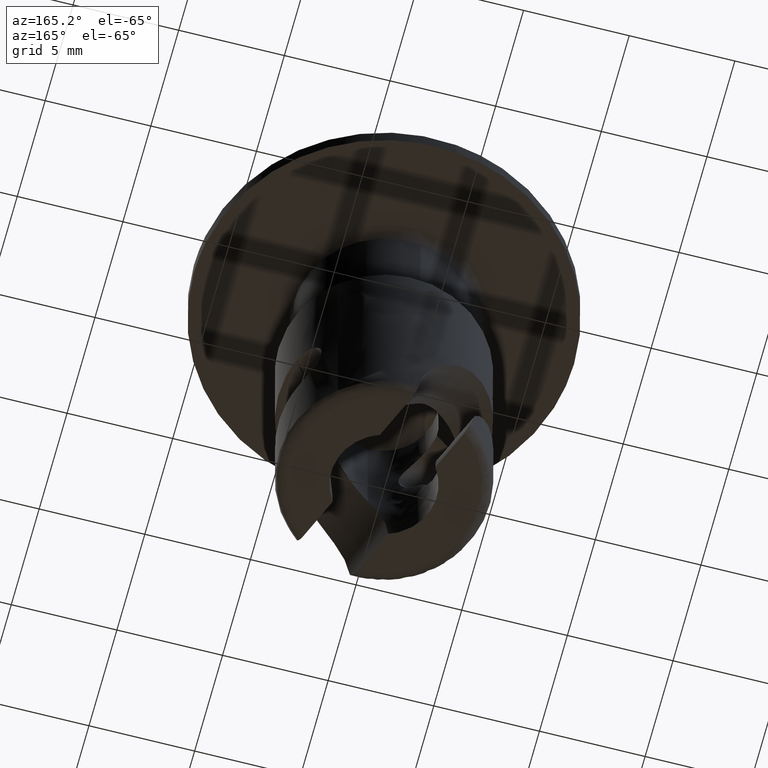
[diagram: clean part render]
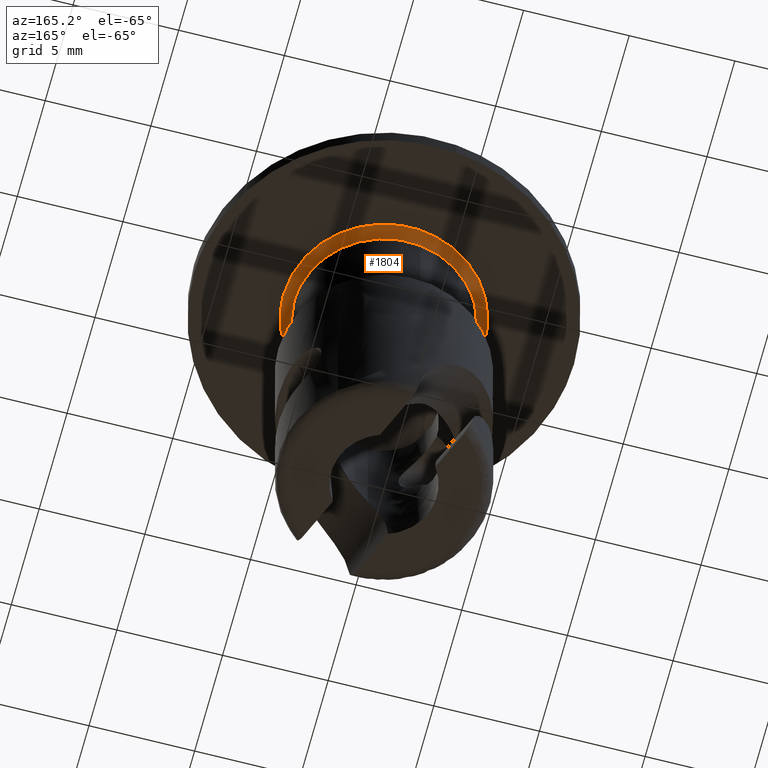
[diagram: same view with one face highlighted and labeled with its STEP entity id]
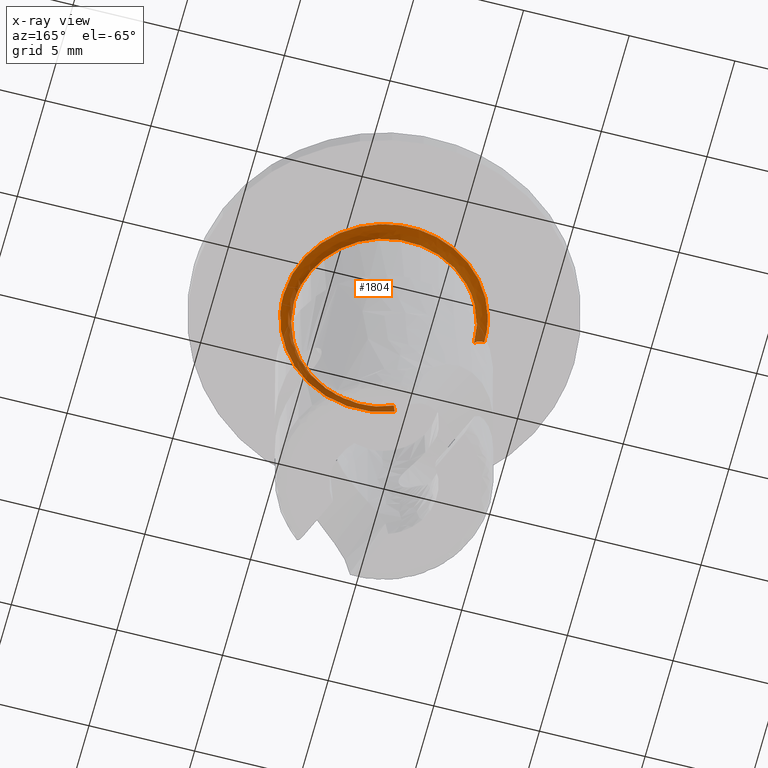
[diagram: x-ray of the same camera — body ghosted, the highlighted face saturated]
A machine part, auxiliary view. The second image highlights one B-rep face of the part: STEP entity #1804.
The next image is the same camera in x-ray: the body ghosted, the highlighted face saturated — about 22% of this face is hidden behind the body in this view.
In plain terms, the highlighted face is a freeform B-spline surface patch.
Its self-contained STEP definition (entity closure, byte-faithful):
#151=CARTESIAN_POINT('',(-0.628185888141464,4.203318033402024,-0.499999999998774));
#152=VERTEX_POINT('',#151);
#158=CARTESIAN_POINT('',(4.250000000000000,0.0,-0.499999999999945));
#159=VERTEX_POINT('',#158);
#160=CARTESIAN_POINT('',(-0.628185888141464,4.203318033402023,-0.499999999998774));
#161=CARTESIAN_POINT('',(-0.315827467280018,4.250000000000000,-0.499999999999945));
#162=CARTESIAN_POINT('',(0.0,4.250000000000000,-0.499999999999945));
#163=CARTESIAN_POINT('',(4.249999999999999,4.249999999999999,-0.499999999999945));
#164=CARTESIAN_POINT('',(4.250000000000000,0.0,-0.499999999999945));
#172=(BOUNDED_CURVE()B_SPLINE_CURVE(2,(#160,#161,#162,#163,#164),.UNSPECIFIED.,.F.,.U.)B_SPLINE_CURVE_WITH_KNOTS((3,2,3),(0.724511193935959,0.750000000000000,1.0),.UNSPECIFIED.)CURVE()GEOMETRIC_REPRESENTATION_ITEM()RATIONAL_B_SPLINE_CURVE((0.946365184936235,0.970138006192765,1.0,0.707106781186548,1.0))REPRESENTATION_ITEM(''));
#173=EDGE_CURVE('',#152,#159,#172,.T.);
#175=CARTESIAN_POINT('',(-1.501533358306497,-3.975914683930328,-0.499999999895076));
#176=VERTEX_POINT('',#175);
#177=CARTESIAN_POINT('',(4.250000000000000,0.0,-0.499999999999945));
#178=CARTESIAN_POINT('',(4.249999999999999,-4.249999999999999,-0.499999999999945));
#179=CARTESIAN_POINT('',(0.0,-4.250000000000000,-0.499999999999945));
#180=CARTESIAN_POINT('',(-0.775782027653905,-4.250000000000000,-0.499999999999945));
#181=CARTESIAN_POINT('',(-1.501533358306497,-3.975914683930328,-0.499999999895077));
#189=(BOUNDED_CURVE()B_SPLINE_CURVE(2,(#177,#178,#179,#180,#181),.UNSPECIFIED.,.F.,.U.)B_SPLINE_CURVE_WITH_KNOTS((3,2,3),(0.0,0.250000000000000,0.310000000000085),.UNSPECIFIED.)CURVE()GEOMETRIC_REPRESENTATION_ITEM()RATIONAL_B_SPLINE_CURVE((1.0,0.707106781186548,1.0,0.929705627484671,0.893152553776749))REPRESENTATION_ITEM(''));
#190=EDGE_CURVE('',#159,#176,#189,.T.);
#192=CARTESIAN_POINT('',(-4.249999999999999,2.218537E-016,-0.499999999893351));
#193=VERTEX_POINT('',#192);
#207=CARTESIAN_POINT('',(-3.148860157409597,2.854326489573020,-0.499999999964939));
#208=VERTEX_POINT('',#207);
#209=CARTESIAN_POINT('',(-4.249999999999999,2.218537E-016,-0.499999999893351));
#210=CARTESIAN_POINT('',(-4.250000000000001,1.639561444952711,-0.499999999934473));
#211=CARTESIAN_POINT('',(-3.148860157409597,2.854326489573019,-0.499999999964939));
#219=(BOUNDED_CURVE()B_SPLINE_CURVE(2,(#209,#210,#211),.UNSPECIFIED.,.F.,.U.)B_SPLINE_CURVE_WITH_KNOTS((3,3),(0.500000000000000,0.617601417316697),.UNSPECIFIED.)CURVE()GEOMETRIC_REPRESENTATION_ITEM()RATIONAL_B_SPLINE_CURVE((1.0,0.862221369380354,0.854066436655300))REPRESENTATION_ITEM(''));
#220=EDGE_CURVE('',#193,#208,#219,.T.);
#262=CARTESIAN_POINT('',(-3.148860157409597,2.854326489573020,-0.499999999964939));
#263=CARTESIAN_POINT('',(-2.129422905639117,3.978958158264121,-0.499999999993147));
#264=CARTESIAN_POINT('',(-0.628185888141464,4.203318033402023,-0.499999999998774));
#272=(BOUNDED_CURVE()B_SPLINE_CURVE(2,(#262,#263,#264),.UNSPECIFIED.,.F.,.U.)B_SPLINE_CURVE_WITH_KNOTS((3,3),(0.617601417316697,0.724511193935959),.UNSPECIFIED.)CURVE()GEOMETRIC_REPRESENTATION_ITEM()RATIONAL_B_SPLINE_CURVE((0.854066436655300,0.846652903248362,0.946365184936235))REPRESENTATION_ITEM(''));
#273=EDGE_CURVE('',#208,#152,#272,.T.);
#1701=CARTESIAN_POINT('',(-1.690435198935368,-4.476108434424392,-0.001203826731089));
#1702=CARTESIAN_POINT('',(-0.873380027817440,-4.784675315893946,-0.001203826731089));
#1703=CARTESIAN_POINT('',(-5.859344E-016,-4.784675315893946,-0.001203826731089));
#1704=CARTESIAN_POINT('',(4.784675315893944,-4.784675315893945,-0.001203826731089));
#1705=CARTESIAN_POINT('',(4.784675315893946,-8.789016E-016,-0.001203826731089));
#1706=CARTESIAN_POINT('',(4.784675315893945,4.784675315893944,-0.001203826731089));
#1707=CARTESIAN_POINT('',(1.171869E-015,4.784675315893946,-0.001203826731089));
#1708=CARTESIAN_POINT('',(-4.784675315893944,4.784675315893945,-0.001203826731089));
#1709=CARTESIAN_POINT('',(-4.784675315893946,1.464836E-015,-0.001203826731089));
#1710=CARTESIAN_POINT('',(-1.487800636366968,-3.939551768312883,0.038667875892163));
#1711=CARTESIAN_POINT('',(-0.768686881339999,-4.211130355236122,0.038667875892163));
#1712=CARTESIAN_POINT('',(-5.156977E-016,-4.211130355236123,0.038667875892163));
#1713=CARTESIAN_POINT('',(4.211130355236122,-4.211130355236122,0.038667875892163));
#1714=CARTESIAN_POINT('',(4.211130355236123,-7.735465E-016,0.038667875892163));
#1715=CARTESIAN_POINT('',(4.211130355236122,4.211130355236122,0.038667875892163));
#1716=CARTESIAN_POINT('',(1.031395E-015,4.211130355236123,0.038667875892163));
#1717=CARTESIAN_POINT('',(-4.211130355236122,4.211130355236122,0.038667875892163));
#1718=CARTESIAN_POINT('',(-4.211130355236123,1.289244E-015,0.038667875892163));
#1719=CARTESIAN_POINT('',(-1.501963272960139,-3.977053056234654,-0.534862112595797));
#1720=CARTESIAN_POINT('',(-0.776004147301747,-4.251216847612755,-0.534862112595797));
#1721=CARTESIAN_POINT('',(-5.206067E-016,-4.251216847612756,-0.534862112595797));
#1722=CARTESIAN_POINT('',(4.251216847612755,-4.251216847612756,-0.534862112595797));
#1723=CARTESIAN_POINT('',(4.251216847612756,-7.809101E-016,-0.534862112595797));
#1724=CARTESIAN_POINT('',(4.251216847612756,4.251216847612755,-0.534862112595797));
#1725=CARTESIAN_POINT('',(1.041213E-015,4.251216847612756,-0.534862112595797));
#1726=CARTESIAN_POINT('',(-4.251216847612755,4.251216847612756,-0.534862112595797));
#1727=CARTESIAN_POINT('',(-4.251216847612756,1.301517E-015,-0.534862112595797));
#1735=(BOUNDED_SURFACE()B_SPLINE_SURFACE(2,2,((#1701,#1710,#1719),(#1702,#1711,#1720),(#1703,#1712,#1721),(#1704,#1713,#1722),(#1705,#1714,#1723),(#1706,#1715,#1724),(#1707,#1716,#1725),(#1708,#1717,#1726),(#1709,#1718,#1727)),.UNSPECIFIED.,.F.,.F.,.U.)B_SPLINE_SURFACE_WITH_KNOTS((3,2,2,2,3),(3,3),(0.0,1.902602311099245,9.830111940679423,17.757621570259602,25.685131199839780),(0.0,0.911185222123489),.UNSPECIFIED.)GEOMETRIC_REPRESENTATION_ITEM()RATIONAL_B_SPLINE_SURFACE(((0.812829742495508,0.531919635418494,0.808327346992212),(0.846095532716660,0.553688926182902,0.841408872617134),(0.910068206218876,0.595552946883686,0.905027191126598),(0.643515399959645,0.421119527297086,0.639950864003831),(0.910068206218876,0.595552946883686,0.905027191126598),(0.643515399959645,0.421119527297086,0.639950864003831),(0.910068206218876,0.595552946883686,0.905027191126598),(0.643515399959645,0.421119527297086,0.639950864003831),(0.910068206218876,0.595552946883686,0.905027191126598)))REPRESENTATION_ITEM('')SURFACE());
#1736=ORIENTED_EDGE('',*,*,#190,.F.);
#1737=ORIENTED_EDGE('',*,*,#173,.F.);
#1738=ORIENTED_EDGE('',*,*,#273,.F.);
#1739=ORIENTED_EDGE('',*,*,#220,.F.);
#1740=CARTESIAN_POINT('',(-4.749999999905166,1.109309E-016,1.369246E-014));
#1741=VERTEX_POINT('',#1740);
#1742=CARTESIAN_POINT('',(-4.749999999905167,1.109309E-016,1.369246E-014));
#1743=CARTESIAN_POINT('',(-4.250000000213188,4.424206E-016,-3.792815E-010));
#1744=CARTESIAN_POINT('',(-4.250000000000000,2.218537E-016,-0.499999999893351));
#1752=(BOUNDED_CURVE()B_SPLINE_CURVE(2,(#1742,#1743,#1744),.UNSPECIFIED.,.F.,.U.)B_SPLINE_CURVE_WITH_KNOTS((3,3),(-1.726807298738635,-0.285995334478286),.UNSPECIFIED.)CURVE()GEOMETRIC_REPRESENTATION_ITEM()RATIONAL_B_SPLINE_CURVE((0.882788775939147,0.622603437955003,0.878205638900743))REPRESENTATION_ITEM(''));
#1753=EDGE_CURVE('',#1741,#193,#1752,.T.);
#1754=ORIENTED_EDGE('',*,*,#1753,.F.);
#1755=CARTESIAN_POINT('',(4.750000000000000,0.0,0.0));
#1756=VERTEX_POINT('',#1755);
#1757=CARTESIAN_POINT('',(4.750000000000000,0.0,0.0));
#1758=CARTESIAN_POINT('',(4.750000000000000,4.750000000000000,0.0));
#1759=CARTESIAN_POINT('',(0.0,4.750000000000000,0.0));
#1760=CARTESIAN_POINT('',(-4.750000000000000,4.750000000000000,0.0));
#1761=CARTESIAN_POINT('',(-4.749999999905166,1.109309E-016,1.369246E-014));
#1769=(BOUNDED_CURVE()B_SPLINE_CURVE(2,(#1757,#1758,#1759,#1760,#1761),.UNSPECIFIED.,.F.,.U.)B_SPLINE_CURVE_WITH_KNOTS((3,2,3),(0.0,0.250000000000000,0.500000000000000),.UNSPECIFIED.)CURVE()GEOMETRIC_REPRESENTATION_ITEM()RATIONAL_B_SPLINE_CURVE((1.0,0.707106781186548,1.0,0.707106781186548,1.0))REPRESENTATION_ITEM(''));
#1770=EDGE_CURVE('',#1756,#1741,#1769,.T.);
#1771=ORIENTED_EDGE('',*,*,#1770,.F.);
#1772=CARTESIAN_POINT('',(-1.678184341631832,-4.443669352607106,2.738718E-014));
#1773=VERTEX_POINT('',#1772);
#1774=CARTESIAN_POINT('',(-1.678184341631832,-4.443669352607106,2.738718E-014));
#1775=CARTESIAN_POINT('',(-0.867050501498491,-4.750000000000000,0.0));
#1776=CARTESIAN_POINT('',(0.0,-4.750000000000000,0.0));
#1777=CARTESIAN_POINT('',(4.750000000000000,-4.750000000000000,0.0));
#1778=CARTESIAN_POINT('',(4.750000000000000,0.0,0.0));
#1786=(BOUNDED_CURVE()B_SPLINE_CURVE(2,(#1774,#1775,#1776,#1777,#1778),.UNSPECIFIED.,.F.,.U.)B_SPLINE_CURVE_WITH_KNOTS((3,2,3),(0.689999999999725,0.750000000000000,1.0),.UNSPECIFIED.)CURVE()GEOMETRIC_REPRESENTATION_ITEM()RATIONAL_B_SPLINE_CURVE((0.893152553776517,0.929705627484449,1.0,0.707106781186548,1.0))REPRESENTATION_ITEM(''));
#1787=EDGE_CURVE('',#1773,#1756,#1786,.T.);
#1788=ORIENTED_EDGE('',*,*,#1787,.F.);
#1789=CARTESIAN_POINT('',(-1.678184341631832,-4.443669352607107,2.738718E-014));
#1790=CARTESIAN_POINT('',(-1.501533358379526,-3.975914684126944,-4.248674E-011));
#1791=CARTESIAN_POINT('',(-1.501533358306497,-3.975914683930329,-0.499999999895077));
#1799=(BOUNDED_CURVE()B_SPLINE_CURVE(2,(#1789,#1790,#1791),.UNSPECIFIED.,.F.,.U.)B_SPLINE_CURVE_WITH_KNOTS((3,3),(-1.726807299426682,-0.285995334471271),.UNSPECIFIED.)CURVE()GEOMETRIC_REPRESENTATION_ITEM()RATIONAL_B_SPLINE_CURVE((0.788465049897538,0.556079850489609,0.784371609127654))REPRESENTATION_ITEM(''));
#1800=EDGE_CURVE('',#1773,#176,#1799,.T.);
#1801=ORIENTED_EDGE('',*,*,#1800,.T.);
#1802=EDGE_LOOP('',(#1736,#1737,#1738,#1739,#1754,#1771,#1788,#1801));
#1803=FACE_OUTER_BOUND('',#1802,.T.);
#1804=ADVANCED_FACE('',(#1803),#1735,.F.);